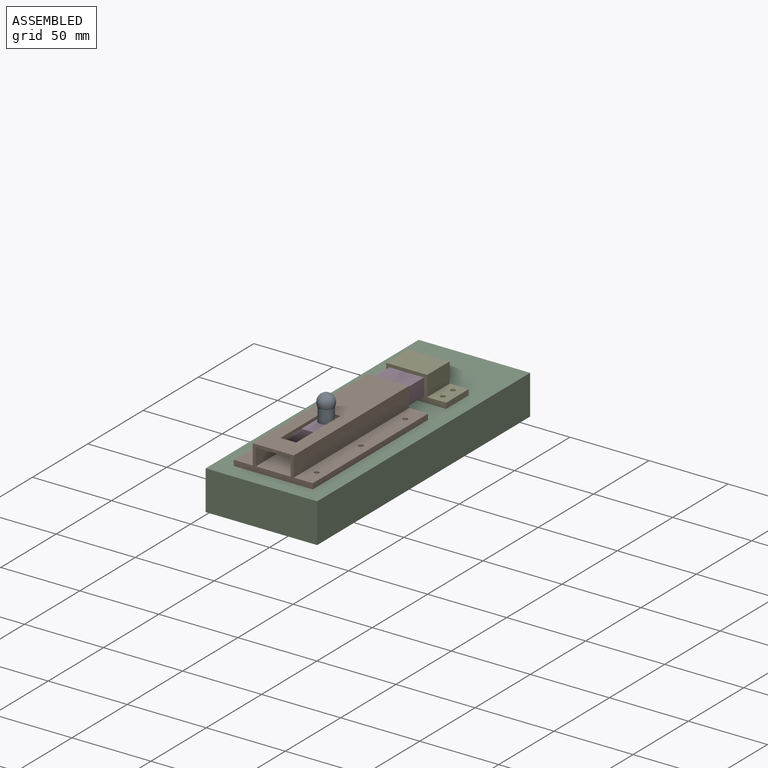
[diagram: assembled view]
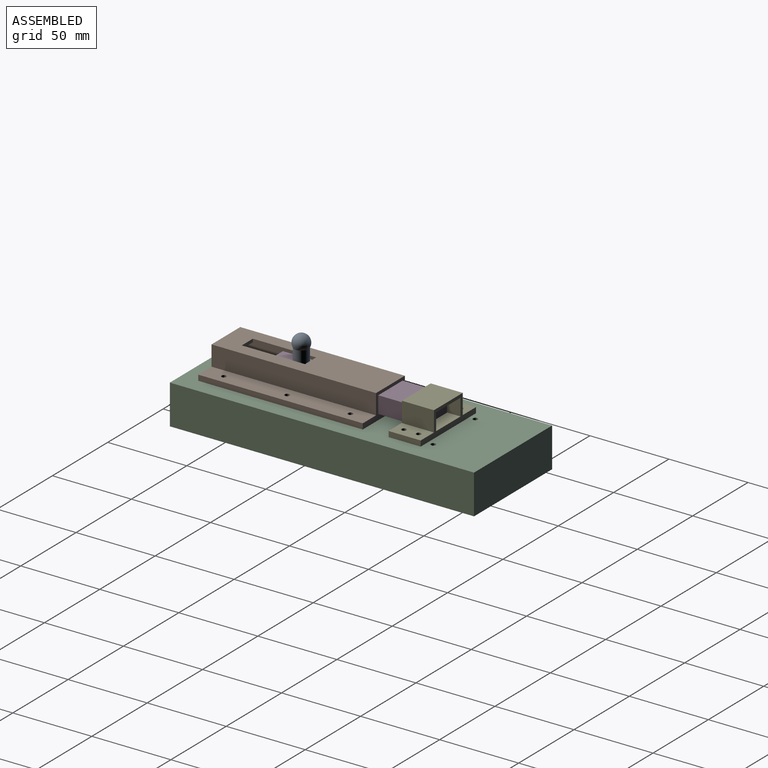
[diagram: assembled view, second angle]
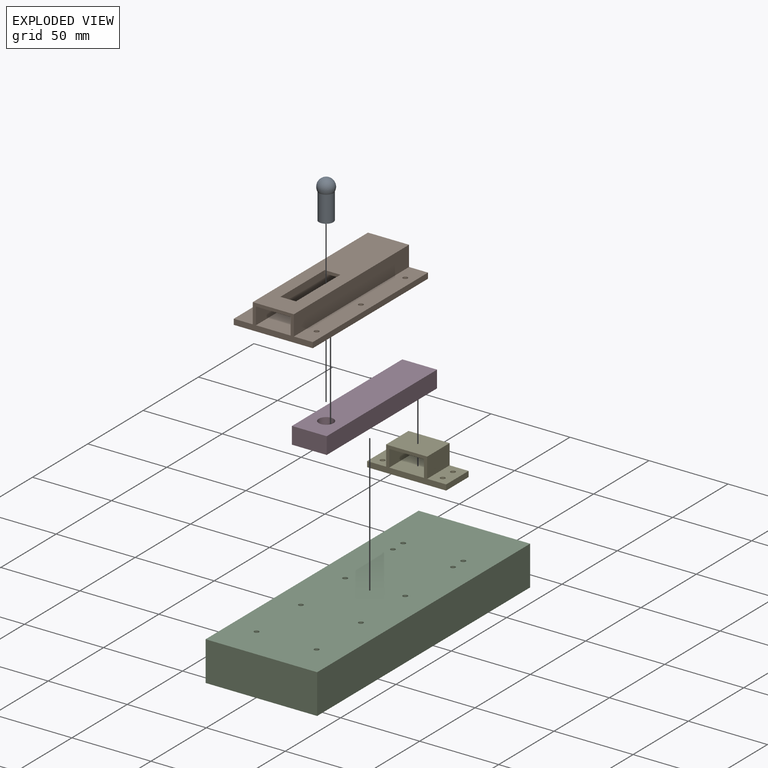
[diagram: exploded view]
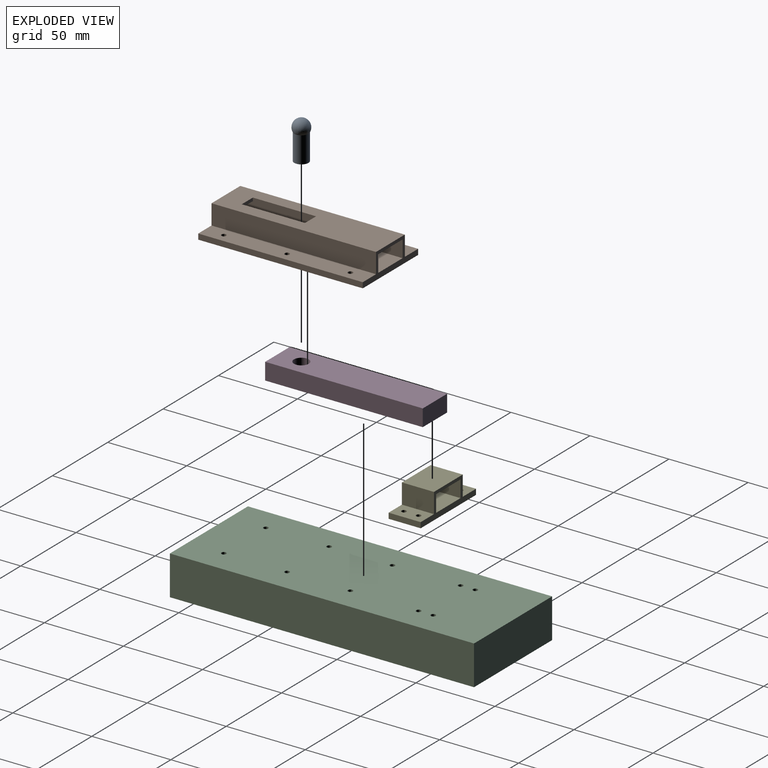
[diagram: exploded view, second angle]
ASSEMBLY  parts=5 mates=4
PART A: 3 faces, bbox 10.3x10.3x24.4 mm
  f0: cylinder r=4.5mm len=16.64mm, axis (0,0,-1), area 470.5mm2, adj f1,f2
  f1: plane 9x9mm, normal (0,0,-1), area 63.6mm2, adj f0
  f2: revolved ~10.32x10.32mm, area 250.5mm2, adj f0
PART B: 24 faces, bbox 50x104.1x16.2 mm
  f0: plane 104.09x50mm, normal (0,0,-1), area 5162.1mm2, adj f10,f11,f12,f13,f18,f19,f20,f21
  f1: plane 104.09x26mm, normal (0,0,1), area 2306.3mm2, adj f7,f8,f12,f13,f14,f15,f16,f17
  f2: plane 104.09x22mm, normal (0,0,-1), area 1890mm2, adj f3,f5,f12,f13,f14,f15,f16,f17
  f3: plane 104.09x10.71mm, normal (-1,0,0), area 1114.9mm2, adj f2,f4,f12,f13
  f4: plane 104.09x22mm, normal (0,0,1), area 2290mm2, adj f3,f5,f12,f13
  f5: plane 104.09x10.71mm, normal (1,0,0), area 1114.9mm2, adj f2,f4,f12,f13
  f6: plane 104.09x12mm, normal (0,0,1), area 1227.9mm2, adj f7,f11,f12,f13,f18,f22,f23
  f7: plane 104.09x12.71mm, normal (1,0,0), area 1323.1mm2, adj f1,f6,f12,f13
  f8: plane 104.09x12.71mm, normal (-1,0,0), area 1323.1mm2, adj f1,f9,f12,f13
  f9: plane 104.09x12mm, normal (0,0,1), area 1227.9mm2, adj f8,f10,f12,f13,f19,f20,f21
  f10: plane 104.09x3.5mm, normal (-1,0,0), area 364.3mm2, adj f0,f9,f12,f13
  f11: plane 104.09x3.5mm, normal (1,0,0), area 364.3mm2, adj f0,f6,f12,f13
  f12: plane 50x16.21mm, normal (0,-1,0), area 269.8mm2, adj f0,f1,f2,f3,f4,f5,f6,f7
  f13: plane 50x16.21mm, normal (0,1,0), area 269.8mm2, adj f0,f1,f2,f3,f4,f5,f6,f7
  f14: plane 10x2mm, normal (0,1,0), area 20mm2, adj f1,f2,f15,f17
  f15: plane 40x2mm, normal (-1,0,0), area 80mm2, adj f1,f2,f14,f16
  f16: plane 10x2mm, normal (0,-1,0), area 20mm2, adj f1,f2,f15,f17
  f17: plane 40x2mm, normal (1,0,0), area 80mm2, adj f1,f2,f14,f16
  f18: cylinder r=1.5mm len=3.5mm, axis (0,0,1), area 33mm2, adj f0,f6
  f19: cylinder r=1.5mm len=3.5mm, axis (0,0,1), area 33mm2, adj f0,f9
  f20: cylinder r=1.5mm len=3.5mm, axis (0,0,1), area 33mm2, adj f0,f9
  f21: cylinder r=1.5mm len=3.5mm, axis (0,0,1), area 33mm2, adj f0,f9
  f22: cylinder r=1.5mm len=3.5mm, axis (0,0,1), area 33mm2, adj f0,f6
  f23: cylinder r=1.5mm len=3.5mm, axis (0,0,1), area 33mm2, adj f0,f6
PART C: 26 faces, bbox 70.6x192.4x25 mm
  f0: plane 192.44x70.56mm, normal (0,0,1), area 13507.9mm2, adj f1,f2,f3,f4,f6,f8,f10,f12
  f1: plane 192.44x25mm, normal (1,0,0), area 4811mm2, adj f0,f2,f4,f5
  f2: plane 70.56x25mm, normal (0,-1,0), area 1764mm2, adj f0,f1,f3,f5
  f3: plane 192.44x25mm, normal (-1,0,0), area 4811mm2, adj f0,f2,f4,f5
  f4: plane 70.56x25mm, normal (0,1,0), area 1764mm2, adj f0,f1,f3,f5
  f5: plane 192.44x70.56mm, normal (0,0,-1), area 13578.6mm2, adj f1,f2,f3,f4
  f6: cylinder r=1.5mm len=21.5mm, axis (0,0,1), area 202.6mm2, adj f0,f7
  f7: plane 3x3mm, normal (0,0,1), area 7.1mm2, adj f6
  f8: cylinder r=1.5mm len=21.5mm, axis (0,0,1), area 202.6mm2, adj f0,f9
  f9: plane 3x3mm, normal (0,0,1), area 7.1mm2, adj f8
  f10: cylinder r=1.5mm len=21.5mm, axis (0,0,1), area 202.6mm2, adj f0,f11
  f11: plane 3x3mm, normal (0,0,1), area 7.1mm2, adj f10
  f12: cylinder r=1.5mm len=21.5mm, axis (0,0,1), area 202.6mm2, adj f0,f13
  f13: plane 3x3mm, normal (0,0,1), area 7.1mm2, adj f12
  f14: cylinder r=1.5mm len=21.5mm, axis (0,0,1), area 202.6mm2, adj f0,f15
  f15: plane 3x3mm, normal (0,0,1), area 7.1mm2, adj f14
  f16: cylinder r=1.5mm len=21.5mm, axis (0,0,1), area 202.6mm2, adj f0,f17
  f17: plane 3x3mm, normal (0,0,1), area 7.1mm2, adj f16
  f18: cylinder r=1.5mm len=21.5mm, axis (0,0,1), area 202.6mm2, adj f0,f19
  f19: plane 3x3mm, normal (0,0,1), area 7.1mm2, adj f18
  f20: cylinder r=1.5mm len=21.5mm, axis (0,0,1), area 202.6mm2, adj f0,f21
  f21: plane 3x3mm, normal (0,0,1), area 7.1mm2, adj f20
  f22: cylinder r=1.5mm len=21.5mm, axis (0,0,1), area 202.6mm2, adj f0,f23
  f23: plane 3x3mm, normal (0,0,1), area 7.1mm2, adj f22
  f24: cylinder r=1.5mm len=21.5mm, axis (0,0,1), area 202.6mm2, adj f0,f25
  f25: plane 3x3mm, normal (0,0,1), area 7.1mm2, adj f24
PART D: 8 faces, bbox 22x99.7x10.7 mm
  f0: plane 99.7x10.71mm, normal (1,0,0), area 1067.9mm2, adj f1,f3,f4,f5
  f1: plane 99.7x22mm, normal (0,0,-1), area 2193.4mm2, adj f0,f2,f4,f5
  f2: plane 99.7x10.71mm, normal (-1,0,0), area 1067.9mm2, adj f1,f3,f4,f5
  f3: plane 99.7x22mm, normal (0,0,1), area 2124mm2, adj f0,f2,f4,f5,f6
  f4: plane 22x10.71mm, normal (0,-1,0), area 235.6mm2, adj f0,f1,f2,f3
  f5: plane 22x10.71mm, normal (0,1,0), area 235.6mm2, adj f0,f1,f2,f3
  f6: cylinder r=4.7mm len=9.4mm, axis (0,0,-1), area 245.1mm2, adj f3,f7
  f7: plane 9.4x9.4mm, normal (0,0,1), area 69.4mm2, adj f6
PART E: 18 faces, bbox 50x20.3x16.2 mm
  f0: plane 50x20.27mm, normal (0,0,-1), area 985.4mm2, adj f1,f2,f8,f13,f14,f15,f16,f17
  f1: plane 20.27x3.5mm, normal (1,0,0), area 71mm2, adj f0,f6,f8,f13
  f2: plane 20.27x3.5mm, normal (-1,0,0), area 71mm2, adj f0,f3,f8,f13
  f3: plane 20.27x12mm, normal (0,0,1), area 229.1mm2, adj f2,f4,f8,f13,f15,f16
  f4: plane 20.27x12.71mm, normal (-1,0,0), area 257.7mm2, adj f3,f7,f8,f13
  f5: plane 20.27x12.71mm, normal (1,0,0), area 257.7mm2, adj f6,f7,f8,f13
  f6: plane 20.27x12mm, normal (0,0,1), area 229.1mm2, adj f1,f5,f8,f13,f14,f17
  f7: plane 26x20.27mm, normal (0,0,1), area 527.1mm2, adj f4,f5,f8,f13
  f8: plane 50x16.21mm, normal (0,1,0), area 269.8mm2, adj f0,f1,f2,f3,f4,f5,f6,f7
  f9: plane 22x20.27mm, normal (0,0,-1), area 446mm2, adj f8,f10,f12,f13
  f10: plane 20.27x10.71mm, normal (1,0,0), area 217.1mm2, adj f8,f9,f11,f13
  f11: plane 22x20.27mm, normal (0,0,1), area 446mm2, adj f8,f10,f12,f13
  f12: plane 20.27x10.71mm, normal (-1,0,0), area 217.1mm2, adj f8,f9,f11,f13
  f13: plane 50x16.21mm, normal (0,-1,0), area 269.8mm2, adj f0,f1,f2,f3,f4,f5,f6,f7
  f14: cylinder r=1.5mm len=3.5mm, axis (0,0,1), area 33mm2, adj f0,f6
  f15: cylinder r=1.5mm len=3.5mm, axis (0,0,1), area 33mm2, adj f0,f3
  f16: cylinder r=1.5mm len=3.5mm, axis (0,0,1), area 33mm2, adj f0,f3
  f17: cylinder r=1.5mm len=3.5mm, axis (0,0,1), area 33mm2, adj f0,f6
PLACE A t=(7.42,28.16,-17.2)mm
PLACE B t=(7.42,0,-17)mm
PLACE C t=(7.42,0,-17)mm fixed
PLACE D t=(7.42,28.16,-17)mm
PLACE E t=(7.42,-9.27,-17)mm
MATE fastened E.f16 <-> C.f8  axis (0,0,-1) through (-11.58,-14.77,-17)mm
MATE slider D.f4 <-> B.f16  axis (0,-1,0) through (7.42,-117.45,-2.79)mm
MATE fastened A.f0 <-> D.f6  axis (0,0,-1) through (7.42,-102.26,-11.09)mm
MATE fastened B.f21 <-> C.f20  axis (0,0,-1) through (-11.58,-57.91,-17)mm
